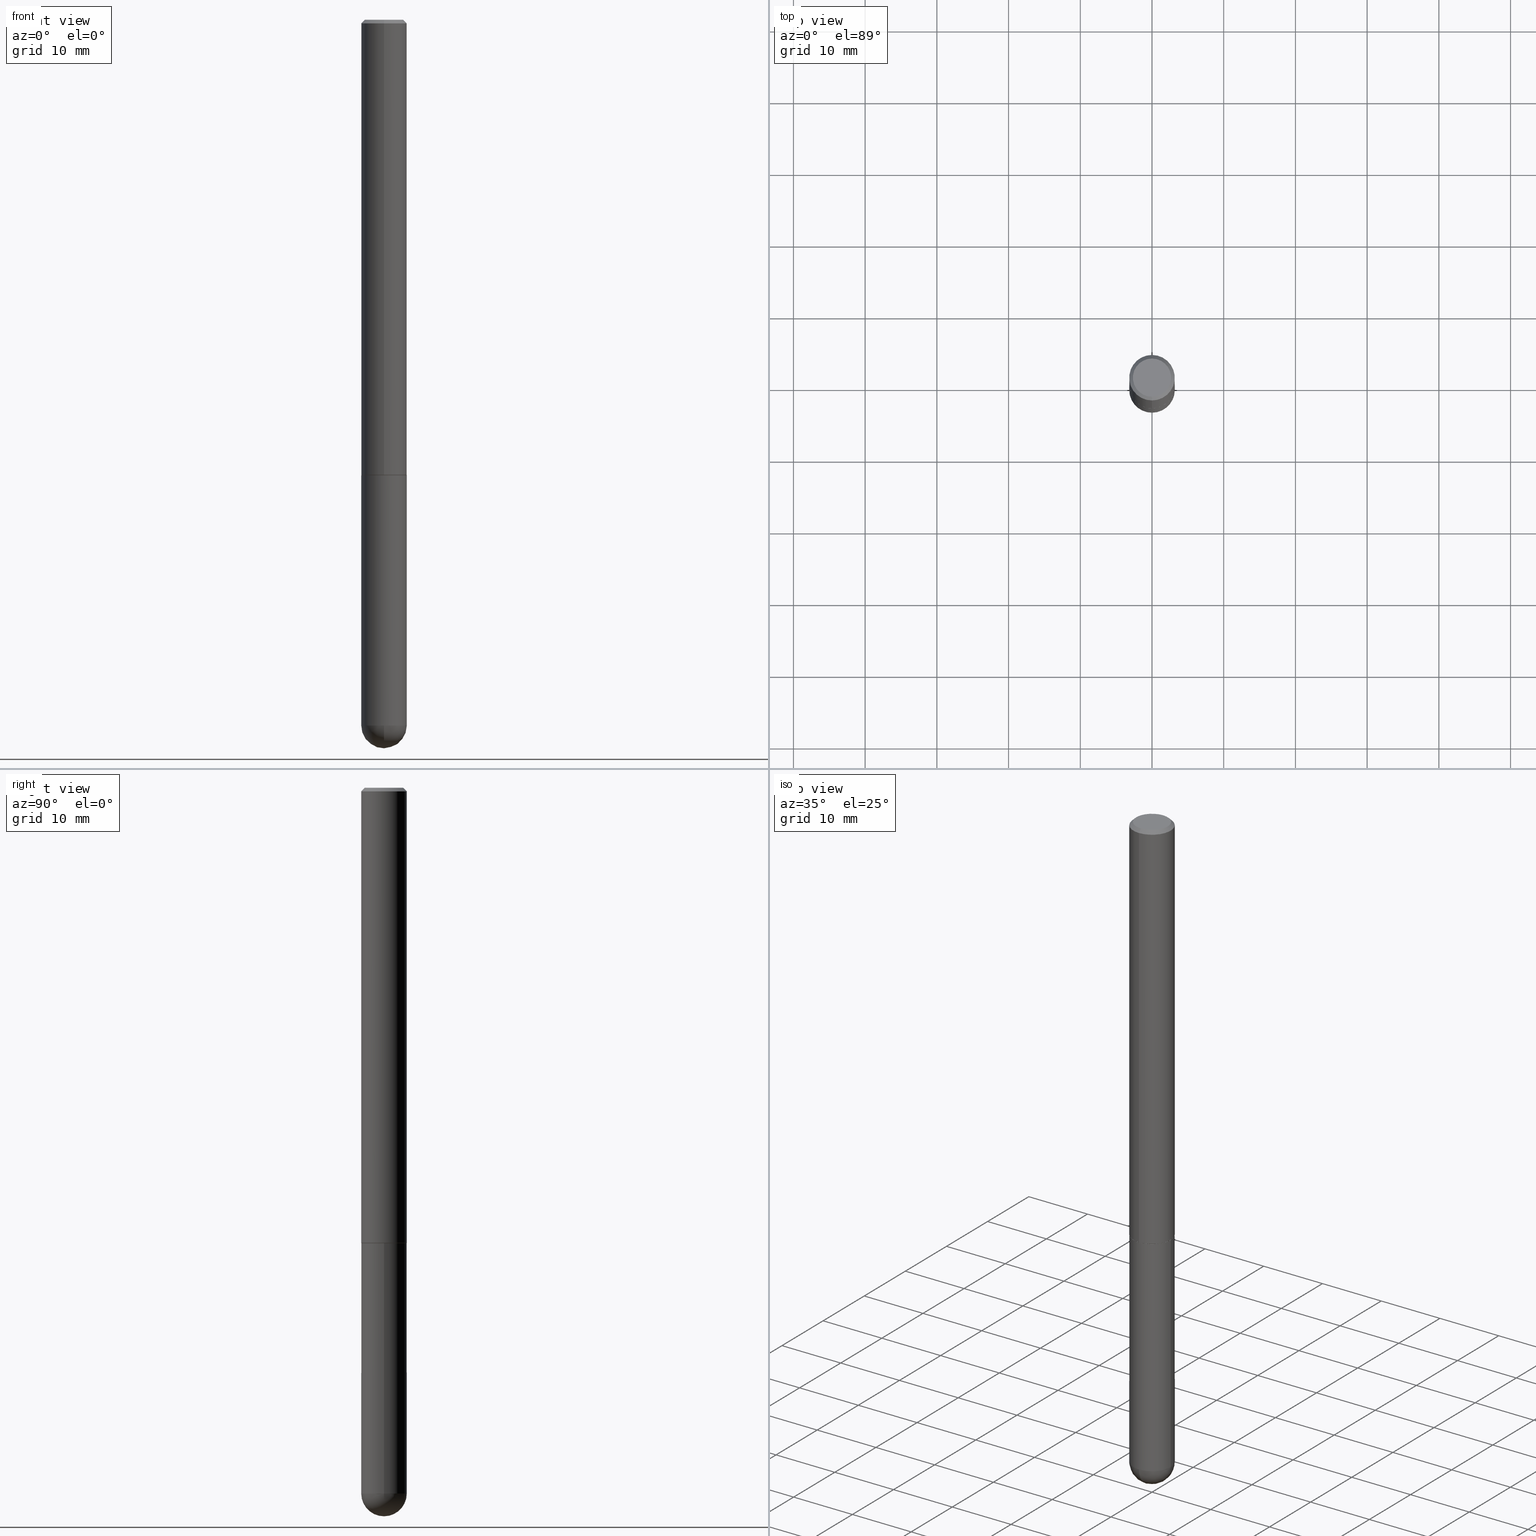
[diagram: canonical four-view strip — front | top / right | iso, engineering-drawing reading convention]
A machine part, canonical four-view strip (front | top / right | iso — engineering-drawing reading convention). The complete STEP part file that produces these views, byte-faithful:
ISO-10303-21;
HEADER;
FILE_DESCRIPTION (( 'STEP AP203' ),
    '1' );
FILE_NAME ('93341.STEP',
    '2024-04-10T12:37:51',
    ( '' ),
    ( '' ),
    'SwSTEP 2.0',
    'SolidWorks 2023',
    '' );
FILE_SCHEMA (( 'CONFIG_CONTROL_DESIGN' ));
ENDSEC;

DATA;
#1 = DIRECTION ( 'NONE',  ( 6.982962677686265922E-15, 1.000000000000000000, -3.491379954491197687E-15 ) ) ;
#2 = DIRECTION ( 'NONE',  ( -2.445468806185136597E-29, 3.491481338843145583E-15, 1.000000000000000000 ) ) ;
#3 = CC_DESIGN_SECURITY_CLASSIFICATION ( #181, ( #306 ) ) ;
#4 = DIRECTION ( 'NONE',  ( -2.445468806185136597E-29, 3.491481338843145583E-15, 1.000000000000000000 ) ) ;
#5 = DIRECTION ( 'NONE',  ( -2.445539602499712119E-29, 3.491379954491197687E-15, 1.000000000000000000 ) ) ;
#6 = EDGE_LOOP ( 'NONE', ( #72, #332 ) ) ;
#7 = CC_DESIGN_DATE_AND_TIME_ASSIGNMENT ( #157, #123, ( #277 ) ) ;
#8 = FACE_OUTER_BOUND ( 'NONE', #189, .T. ) ;
#9 = EDGE_CURVE ( 'NONE', #355, #156, #19, .T. ) ;
#10 = ORIENTED_EDGE ( 'NONE', *, *, #128, .T. ) ;
#11 = AXIS2_PLACEMENT_3D ( 'NONE', #258, #24, #17 ) ;
#12 = ORIENTED_EDGE ( 'NONE', *, *, #9, .T. ) ;
#13 = CARTESIAN_POINT ( 'NONE',  ( 6.113849006249280999E-29, -8.728449886227994612E-15, -2.500000000000000000 ) ) ;
#14 = ADVANCED_FACE ( 'NONE', ( #338 ), #56, .T. ) ;
#15 = ORIENTED_EDGE ( 'NONE', *, *, #202, .T. ) ;
#16 = MANIFOLD_SOLID_BREP ( 'Body-Move/Copy2[2]', #144 ) ;
#17 = DIRECTION ( 'NONE',  ( 1.000000000000000000, -6.982962677686270655E-15, 0.000000000000000000 ) ) ;
#18 = VERTEX_POINT ( 'NONE', #186 ) ;
#19 = CIRCLE ( 'NONE', #359, 0.1250000000000003053 ) ;
#20 = VECTOR ( 'NONE', #302, 39.37007874015748143 ) ;
#21 = APPLICATION_CONTEXT ( 'configuration controlled 3d designs of mechanical parts and assemblies' ) ;
#22 = DIRECTION ( 'NONE',  ( -2.445539602499712119E-29, 3.491379954491197687E-15, 1.000000000000000000 ) ) ;
#23 = DIRECTION ( 'NONE',  ( -6.982962677686265922E-15, -1.000000000000000000, 3.491379954491197687E-15 ) ) ;
#24 = DIRECTION ( 'NONE',  ( -2.445468806185136597E-29, 3.491481338843145583E-15, 1.000000000000000000 ) ) ;
#25 = FACE_OUTER_BOUND ( 'NONE', #175, .T. ) ;
#26 = COORDINATED_UNIVERSAL_TIME_OFFSET ( 5, 0, .BEHIND. ) ;
#27 = ORIENTED_EDGE ( 'NONE', *, *, #147, .T. ) ;
#28 = SHAPE_DEFINITION_REPRESENTATION ( #250, #159 ) ;
#29 = EDGE_LOOP ( 'NONE', ( #365, #121, #78, #404, #266 ) ) ;
#30 = APPROVAL_STATUS ( 'not_yet_approved' ) ;
#31 = EDGE_CURVE ( 'NONE', #388, #278, #281, .T. ) ;
#32 = MECHANICAL_CONTEXT ( 'NONE', #21, 'mechanical' ) ;
#33 = CALENDAR_DATE ( 2024, 10, 4 ) ;
#34 = CIRCLE ( 'NONE', #114, 0.1250000000000000000 ) ;
#35 = LOCAL_TIME ( 8, 37, 51.00000000000000000, #216 ) ;
#36 = DIRECTION ( 'NONE',  ( -6.982962677686265922E-15, -1.000000000000000000, 4.406206441393973340E-15 ) ) ;
#37 = CARTESIAN_POINT ( 'NONE',  ( 9.145071846053518065E-29, -1.400367255615723938E-14, -3.875000000000000000 ) ) ;
#38 = CARTESIAN_POINT ( 'NONE',  ( 9.145071846053518065E-29, -1.400367255615723938E-14, -3.875000000000000000 ) ) ;
#39 = AXIS2_PLACEMENT_3D ( 'NONE', #52, #176, #182 ) ;
#40 = AXIS2_PLACEMENT_3D ( 'NONE', #38, #331, #54 ) ;
#41 = APPROVAL_PERSON_ORGANIZATION ( #377, #276, #286 ) ;
#42 = DIRECTION ( 'NONE',  ( 1.000000000000000000, -6.982962677686262766E-15, 0.000000000000000000 ) ) ;
#43 = EDGE_LOOP ( 'NONE', ( #337, #60, #280, #342 ) ) ;
#44 = ADVANCED_FACE ( 'NONE', ( #407 ), #367, .F. ) ;
#45 = EDGE_CURVE ( 'NONE', #124, #183, #402, .T. ) ;
#46 = CARTESIAN_POINT ( 'NONE',  ( 6.113849006249280999E-29, -8.728449886227994612E-15, -2.500000000000000000 ) ) ;
#47 = ORIENTED_EDGE ( 'NONE', *, *, #259, .F. ) ;
#48 = ORIENTED_EDGE ( 'NONE', *, *, #396, .T. ) ;
#49 = CIRCLE ( 'NONE', #368, 0.1239999999999999991 ) ;
#50 = DIRECTION ( 'NONE',  ( -6.982962677686265922E-15, -1.000000000000000000, 3.491379954491197687E-15 ) ) ;
#51 = VERTEX_POINT ( 'NONE', #86 ) ;
#52 = CARTESIAN_POINT ( 'NONE',  ( -2.922608238305309478E-45, 4.172468034302132165E-31, 1.195077043658569665E-16 ) ) ;
#53 = ORIENTED_EDGE ( 'NONE', *, *, #321, .T. ) ;
#54 = DIRECTION ( 'NONE',  ( 6.982962677686265922E-15, 1.000000000000000000, -4.370956789862814839E-15 ) ) ;
#55 = CARTESIAN_POINT ( 'NONE',  ( 6.113849006249280999E-29, -8.728449886227994612E-15, -2.500000000000000000 ) ) ;
#56 = CONICAL_SURFACE ( 'NONE', #288, 0.1250000000000000278, 0.7853981633974473908 ) ;
#57 = LOCAL_TIME ( 8, 37, 51.00000000000000000, #26 ) ;
#58 = DIRECTION ( 'NONE',  ( -6.982962677686265922E-15, -1.000000000000000000, 3.483106191921934765E-15 ) ) ;
#59 = EDGE_CURVE ( 'NONE', #231, #400, #172, .T. ) ;
#60 = ORIENTED_EDGE ( 'NONE', *, *, #45, .T. ) ;
#61 = PERSON_AND_ORGANIZATION_ROLE ( 'creator' ) ;
#62 = DIRECTION ( 'NONE',  ( -6.982962677686265922E-15, -1.000000000000000000, 4.370956789862810105E-15 ) ) ;
#63 = COORDINATED_UNIVERSAL_TIME_OFFSET ( 5, 0, .BEHIND. ) ;
#64 = CIRCLE ( 'NONE', #263, 0.1250000000000000000 ) ;
#65 = ORIENTED_EDGE ( 'NONE', *, *, #31, .T. ) ;
#66 = LOCAL_TIME ( 8, 37, 51.00000000000000000, #63 ) ;
#67 = PERSON_AND_ORGANIZATION ( #73, #283 ) ;
#68 = CIRCLE ( 'NONE', #353, 0.1250000000000001943 ) ;
#69 = DIRECTION ( 'NONE',  ( -2.445539602499712119E-29, 3.491379954491197687E-15, 1.000000000000000000 ) ) ;
#70 = DIRECTION ( 'NONE',  ( -2.445539602499712119E-29, 3.491379954491197687E-15, 1.000000000000000000 ) ) ;
#71 = DIRECTION ( 'NONE',  ( -6.982962677686265922E-15, -1.000000000000000000, 3.491379954491197687E-15 ) ) ;
#72 = ORIENTED_EDGE ( 'NONE', *, *, #307, .T. ) ;
#73 = PERSON ( 'UNSPECIFIED', 'UNSPECIFIED', 'UNSPECIFIED', ('UNSPECIFIED'), ('UNSPECIFIED'), ('UNSPECIFIED') ) ;
#74 = AXIS2_PLACEMENT_3D ( 'NONE', #13, #22, #335 ) ;
#75 = CARTESIAN_POINT ( 'NONE',  ( 0.1250000000000000000, -8.728703347107833388E-16, 6.095220969744919741E-30 ) ) ;
#76 = CARTESIAN_POINT ( 'NONE',  ( 0.000000000000000000, 0.000000000000000000, 0.000000000000000000 ) ) ;
#77 = CARTESIAN_POINT ( 'NONE',  ( 8.728703347107839305E-16, 0.1249999999999999584, -0.02000000000000046185 ) ) ;
#78 = ORIENTED_EDGE ( 'NONE', *, *, #134, .T. ) ;
#79 = AXIS2_PLACEMENT_3D ( 'NONE', #76, #297, #292 ) ;
#80 = DIRECTION ( 'NONE',  ( -2.445539602499712119E-29, 3.491379954491197687E-15, 1.000000000000000000 ) ) ;
#81 = VERTEX_POINT ( 'NONE', #117 ) ;
#82 = CARTESIAN_POINT ( 'NONE',  ( -8.658873720330357934E-16, -0.1240000000000087144, -2.499999999999999556 ) ) ;
#83 = ORIENTED_EDGE ( 'NONE', *, *, #308, .F. ) ;
#84 =( NAMED_UNIT ( * ) SI_UNIT ( $, .STERADIAN. ) SOLID_ANGLE_UNIT ( ) );
#85 = CC_DESIGN_PERSON_AND_ORGANIZATION_ASSIGNMENT ( #152, #409, ( #277 ) ) ;
#86 = CARTESIAN_POINT ( 'NONE',  ( 9.456100236134031739E-29, -1.443245368101796326E-14, -4.000000000000000888 ) ) ;
#87 = ADVANCED_FACE ( 'NONE', ( #211 ), #271, .T. ) ;
#88 = CIRCLE ( 'NONE', #410, 0.1250000000000000000 ) ;
#89 =( GEOMETRIC_REPRESENTATION_CONTEXT ( 3 ) GLOBAL_UNCERTAINTY_ASSIGNED_CONTEXT ( ( #375 ) ) GLOBAL_UNIT_ASSIGNED_CONTEXT ( ( #267, #352, #84 ) ) REPRESENTATION_CONTEXT ( 'NONE', 'WORKASPACE' ) );
#90 = CARTESIAN_POINT ( 'NONE',  ( 0.000000000000000000, 0.000000000000000000, 0.000000000000000000 ) ) ;
#91 = DIRECTION ( 'NONE',  ( 2.445539602499712119E-29, -3.491379954491197687E-15, -1.000000000000000000 ) ) ;
#92 = VERTEX_POINT ( 'NONE', #275 ) ;
#93 = CC_DESIGN_PERSON_AND_ORGANIZATION_ASSIGNMENT ( #341, #251, ( #306 ) ) ;
#94 = APPROVAL_DATE_TIME ( #244, #246 ) ;
#95 = CARTESIAN_POINT ( 'NONE',  ( 9.476191623967404313E-29, -1.352949018801718908E-14, -3.875000000000000000 ) ) ;
#96 = VECTOR ( 'NONE', #300, 39.37007874015748143 ) ;
#97 = PERSON_AND_ORGANIZATION ( #73, #283 ) ;
#98 = DATE_AND_TIME ( #290, #57 ) ;
#99 = CARTESIAN_POINT ( 'NONE',  ( 8.881784197001575756E-16, 0.1249999999999915623, -2.499000000000000998 ) ) ;
#100 = CONICAL_SURFACE ( 'NONE', #322, 0.1239999999999999991, 0.7853981633977044075 ) ;
#101 = CARTESIAN_POINT ( 'NONE',  ( 0.000000000000000000, 0.000000000000000000, 0.000000000000000000 ) ) ;
#102 = CARTESIAN_POINT ( 'NONE',  ( -0.1250000000000000000, 8.881784197001252323E-16, -6.148668862818632227E-30 ) ) ;
#103 = ADVANCED_FACE ( 'NONE', ( #25 ), #360, .T. ) ;
#104 = CARTESIAN_POINT ( 'NONE',  ( -7.889572697437256209E-16, -0.1049999999999999267, 4.861025995874324279E-16 ) ) ;
#105 = CARTESIAN_POINT ( 'NONE',  ( -8.575622497214411495E-16, -0.1250000000000001110, -0.01999999999999959102 ) ) ;
#106 = CLOSED_SHELL ( 'NONE', ( #219, #261, #218, #44, #160 ) ) ;
#107 = EDGE_LOOP ( 'NONE', ( #198, #209 ) ) ;
#108 = DIRECTION ( 'NONE',  ( -2.445468806185136597E-29, 3.491481338843145583E-15, 1.000000000000000000 ) ) ;
#109 = ORIENTED_EDGE ( 'NONE', *, *, #307, .F. ) ;
#110 = ORIENTED_EDGE ( 'NONE', *, *, #31, .F. ) ;
#111 = DIRECTION ( 'NONE',  ( -6.982962677686265922E-15, -1.000000000000000000, 3.483106191921934765E-15 ) ) ;
#112 = CARTESIAN_POINT ( 'NONE',  ( -8.575622497214411495E-16, -0.1250000000000001110, -0.01999999999999959102 ) ) ;
#113 = ORIENTED_EDGE ( 'NONE', *, *, #145, .T. ) ;
#114 = AXIS2_PLACEMENT_3D ( 'NONE', #387, #291, #194 ) ;
#115 = CC_DESIGN_APPROVAL ( #276, ( #306 ) ) ;
#116 = CARTESIAN_POINT ( 'NONE',  ( -8.728703347107844235E-16, -0.1250000000000001665, 4.364224943114003025E-16 ) ) ;
#117 = CARTESIAN_POINT ( 'NONE',  ( -0.1250000000000000000, -1.024091834786240415E-14, -3.875000000000000000 ) ) ;
#118 = ADVANCED_FACE ( 'NONE', ( #252 ), #164, .T. ) ;
#119 = EDGE_LOOP ( 'NONE', ( #83, #326, #48, #357 ) ) ;
#120 = APPLICATION_PROTOCOL_DEFINITION ( 'international standard', 'config_control_design', 1994, #21 ) ;
#121 = ORIENTED_EDGE ( 'NONE', *, *, #259, .T. ) ;
#122 = VECTOR ( 'NONE', #386, 39.37007874015748143 ) ;
#123 = DATE_TIME_ROLE ( 'creation_date' ) ;
#124 = VERTEX_POINT ( 'NONE', #260 ) ;
#125 = DIRECTION ( 'NONE',  ( -2.445539602499712119E-29, 3.491379954491197687E-15, 1.000000000000000000 ) ) ;
#126 = COORDINATED_UNIVERSAL_TIME_OFFSET ( 5, 0, .BEHIND. ) ;
#127 = CALENDAR_DATE ( 2024, 10, 4 ) ;
#128 = EDGE_CURVE ( 'NONE', #81, #92, #384, .T. ) ;
#129 = PERSON_AND_ORGANIZATION ( #73, #283 ) ;
#130 = CC_DESIGN_PERSON_AND_ORGANIZATION_ASSIGNMENT ( #67, #61, ( #306 ) ) ;
#131 = DIRECTION ( 'NONE',  ( 1.000000000000000000, -6.982962677686266711E-15, 4.876176775795935793E-29 ) ) ;
#132 = LINE ( 'NONE', #105, #192 ) ;
#133 = CC_DESIGN_APPROVAL ( #240, ( #181 ) ) ;
#134 = EDGE_CURVE ( 'NONE', #171, #231, #34, .T. ) ;
#135 = CARTESIAN_POINT ( 'NONE',  ( 9.476191623967404313E-29, -1.352949018801718908E-14, -3.875000000000000000 ) ) ;
#136 = LINE ( 'NONE', #77, #236 ) ;
#137 = DIRECTION ( 'NONE',  ( 2.445539602499711559E-29, -3.491379954491197687E-15, -1.000000000000000000 ) ) ;
#138 = AXIS2_PLACEMENT_3D ( 'NONE', #305, #241, #316 ) ;
#139 = ORIENTED_EDGE ( 'NONE', *, *, #308, .T. ) ;
#140 = AXIS2_PLACEMENT_3D ( 'NONE', #95, #217, #143 ) ;
#141 = ORIENTED_EDGE ( 'NONE', *, *, #232, .T. ) ;
#142 = LINE ( 'NONE', #75, #20 ) ;
#143 = DIRECTION ( 'NONE',  ( 1.000000000000000000, -6.982962677686262766E-15, 0.000000000000000000 ) ) ;
#144 = CLOSED_SHELL ( 'NONE', ( #378, #87, #14, #103, #118, #235, #362, #170 ) ) ;
#145 = EDGE_CURVE ( 'NONE', #393, #388, #132, .T. ) ;
#146 = CIRCLE ( 'NONE', #327, 0.1250000000000000000 ) ;
#147 = EDGE_CURVE ( 'NONE', #183, #124, #49, .T. ) ;
#148 = CARTESIAN_POINT ( 'NONE',  ( 8.728703347108770161E-16, 0.1249999999999863443, -3.875000000000000444 ) ) ;
#149 = CARTESIAN_POINT ( 'NONE',  ( 6.111403466646780702E-29, -8.724958506273503079E-15, -2.499000000000000110 ) ) ;
#150 = LINE ( 'NONE', #116, #122 ) ;
#151 = ORIENTED_EDGE ( 'NONE', *, *, #345, .T. ) ;
#152 = PERSON_AND_ORGANIZATION ( #73, #283 ) ;
#153 = ORIENTED_EDGE ( 'NONE', *, *, #296, .T. ) ;
#154 = VECTOR ( 'NONE', #80, 39.37007874015748143 ) ;
#155 = DIRECTION ( 'NONE',  ( 1.000000000000000000, 0.000000000000000000, 0.000000000000000000 ) ) ;
#156 = VERTEX_POINT ( 'NONE', #99 ) ;
#157 = DATE_AND_TIME ( #373, #66 ) ;
#158 = APPROVAL_ROLE ( '' ) ;
#159 = ADVANCED_BREP_SHAPE_REPRESENTATION ( '93341', ( #163, #16, #230 ), #89 ) ;
#160 = ADVANCED_FACE ( 'NONE', ( #350 ), #233, .T. ) ;
#161 = CARTESIAN_POINT ( 'NONE',  ( -8.881784197000325412E-16, -0.1250000000000138500, -3.874999999999999556 ) ) ;
#162 = CYLINDRICAL_SURFACE ( 'NONE', #314, 0.1250000000000000000 ) ;
#163 = MANIFOLD_SOLID_BREP ( 'Body-Move/Copy2[1]', #106 ) ;
#164 = CYLINDRICAL_SURFACE ( 'NONE', #389, 0.1250000000000001665 ) ;
#165 = CIRCLE ( 'NONE', #205, 0.1250000000000001943 ) ;
#166 = DIRECTION ( 'NONE',  ( 1.000000000000000000, -6.982962677686270655E-15, 0.000000000000000000 ) ) ;
#167 = DIRECTION ( 'NONE',  ( -2.445539602499712119E-29, 3.491379954491197687E-15, 1.000000000000000000 ) ) ;
#168 = ORIENTED_EDGE ( 'NONE', *, *, #396, .F. ) ;
#169 = CARTESIAN_POINT ( 'NONE',  ( 6.113849006249280999E-29, -8.728449886227994612E-15, -2.500000000000000000 ) ) ;
#170 = ADVANCED_FACE ( 'NONE', ( #380 ), #319, .F. ) ;
#171 = VERTEX_POINT ( 'NONE', #161 ) ;
#172 = CIRCLE ( 'NONE', #140, 0.1250000000000000000 ) ;
#173 = CARTESIAN_POINT ( 'NONE',  ( 4.891079204999430334E-31, -6.982759908982402769E-17, -0.02000000000000002470 ) ) ;
#174 = LINE ( 'NONE', #82, #96 ) ;
#175 = EDGE_LOOP ( 'NONE', ( #204, #311, #141, #392 ) ) ;
#176 = DIRECTION ( 'NONE',  ( -2.445539602499712119E-29, 3.491379954491197687E-15, 1.000000000000000000 ) ) ;
#177 = ORIENTED_EDGE ( 'NONE', *, *, #296, .F. ) ;
#178 = DIRECTION ( 'NONE',  ( -6.982962677686265922E-15, -1.000000000000000000, 4.370956789862810105E-15 ) ) ;
#179 = DIRECTION ( 'NONE',  ( -2.445539602499712119E-29, 3.491379954491197687E-15, 1.000000000000000000 ) ) ;
#180 = AXIS2_PLACEMENT_3D ( 'NONE', #226, #137, #1 ) ;
#181 = SECURITY_CLASSIFICATION ( '', '', #312 ) ;
#182 = DIRECTION ( 'NONE',  ( -6.982962677686265922E-15, -1.000000000000000000, 3.491379954491197687E-15 ) ) ;
#183 = VERTEX_POINT ( 'NONE', #320 ) ;
#184 = CARTESIAN_POINT ( 'NONE',  ( 9.145071846053518065E-29, -1.400367255615723938E-14, -3.875000000000000000 ) ) ;
#185 = DIRECTION ( 'NONE',  ( 6.982962677686265922E-15, 1.000000000000000000, -3.483106191921934765E-15 ) ) ;
#186 = CARTESIAN_POINT ( 'NONE',  ( 8.030407079339207309E-16, 0.1049999999999999267, -2.470871908557185934E-16 ) ) ;
#187 = AXIS2_PLACEMENT_3D ( 'NONE', #262, #69, #71 ) ;
#188 = DATE_AND_TIME ( #127, #264 ) ;
#189 = EDGE_LOOP ( 'NONE', ( #234, #53, #47, #177 ) ) ;
#190 = PERSON_AND_ORGANIZATION_ROLE ( 'design_owner' ) ;
#191 = DESIGN_CONTEXT ( 'detailed design', #340, 'design' ) ;
#192 = VECTOR ( 'NONE', #347, 39.37007874015748143 ) ;
#193 = APPROVAL_PERSON_ORGANIZATION ( #379, #240, #158 ) ;
#194 = DIRECTION ( 'NONE',  ( 1.000000000000000000, -6.982962677686262766E-15, 0.000000000000000000 ) ) ;
#195 = DIRECTION ( 'NONE',  ( 1.000000000000000000, -6.982962677686262766E-15, 0.000000000000000000 ) ) ;
#196 = FACE_OUTER_BOUND ( 'NONE', #385, .T. ) ;
#197 = VECTOR ( 'NONE', #228, 39.37007874015748143 ) ;
#198 = ORIENTED_EDGE ( 'NONE', *, *, #147, .F. ) ;
#199 = CARTESIAN_POINT ( 'NONE',  ( 6.111403466646780702E-29, -8.724958506273503079E-15, -2.499000000000000110 ) ) ;
#200 = DIRECTION ( 'NONE',  ( 4.937700262164543309E-15, 0.7071067811865444641, -0.7071067811865505703 ) ) ;
#201 = EDGE_CURVE ( 'NONE', #18, #393, #242, .T. ) ;
#202 = EDGE_CURVE ( 'NONE', #124, #156, #323, .T. ) ;
#203 = CARTESIAN_POINT ( 'NONE',  ( 8.728703347107839305E-16, 0.1249999999999999584, -0.02000000000000046185 ) ) ;
#204 = ORIENTED_EDGE ( 'NONE', *, *, #145, .F. ) ;
#205 = AXIS2_PLACEMENT_3D ( 'NONE', #330, #309, #207 ) ;
#206 = PRODUCT_RELATED_PRODUCT_CATEGORY ( 'detail', '', ( #225 ) ) ;
#207 = DIRECTION ( 'NONE',  ( -7.105427357601000281E-15, -1.000000000000000000, 0.000000000000000000 ) ) ;
#208 = ORIENTED_EDGE ( 'NONE', *, *, #363, .F. ) ;
#209 = ORIENTED_EDGE ( 'NONE', *, *, #45, .F. ) ;
#210 = FACE_OUTER_BOUND ( 'NONE', #361, .T. ) ;
#211 = FACE_OUTER_BOUND ( 'NONE', #399, .T. ) ;
#212 = CARTESIAN_POINT ( 'NONE',  ( 9.476191623967404313E-29, -1.352949018801718908E-14, -3.875000000000000000 ) ) ;
#213 = CARTESIAN_POINT ( 'NONE',  ( -8.728703347107242729E-16, -0.1250000000000090206, -2.498999999999999666 ) ) ;
#214 = DIRECTION ( 'NONE',  ( 6.982962677686265922E-15, 1.000000000000000000, -3.483106191921934765E-15 ) ) ;
#215 = DIRECTION ( 'NONE',  ( 2.445539602499712119E-29, -3.491379954491197687E-15, -1.000000000000000000 ) ) ;
#216 = COORDINATED_UNIVERSAL_TIME_OFFSET ( 5, 0, .BEHIND. ) ;
#217 = DIRECTION ( 'NONE',  ( -2.445468806185136597E-29, 3.491481338843145583E-15, 1.000000000000000000 ) ) ;
#218 = ADVANCED_FACE ( 'NONE', ( #356 ), #412, .T. ) ;
#219 = ADVANCED_FACE ( 'NONE', ( #196 ), #162, .T. ) ;
#220 = APPROVAL_STATUS ( 'not_yet_approved' ) ;
#221 = APPROVAL_DATE_TIME ( #249, #240 ) ;
#222 = DIRECTION ( 'NONE',  ( -2.445468806185136877E-29, 3.491481338843145188E-15, 1.000000000000000000 ) ) ;
#223 = AXIS2_PLACEMENT_3D ( 'NONE', #369, #91, #214 ) ;
#224 = CARTESIAN_POINT ( 'NONE',  ( 0.1250000000000000000, -1.200196710227331272E-14, -3.875000000000000000 ) ) ;
#225 = PRODUCT ( '93341', '93341', '', ( #32 ) ) ;
#226 = CARTESIAN_POINT ( 'NONE',  ( 7.332110811570574327E-16, 0.1049999999999999267, -3.068410430386469287E-16 ) ) ;
#227 = LENGTH_MEASURE_WITH_UNIT ( LENGTH_MEASURE( 0.02539999999999999897 ), #274 );
#228 = DIRECTION ( 'NONE',  ( 5.024295867789349022E-15, 0.7071067811867310926, 0.7071067811863640529 ) ) ;
#229 = CC_DESIGN_PERSON_AND_ORGANIZATION_ASSIGNMENT ( #97, #190, ( #225 ) ) ;
#230 = AXIS2_PLACEMENT_3D ( 'NONE', #90, #411, #155 ) ;
#231 = VERTEX_POINT ( 'NONE', #224 ) ;
#232 = EDGE_CURVE ( 'NONE', #18, #278, #136, .T. ) ;
#233 = CYLINDRICAL_SURFACE ( 'NONE', #79, 0.1250000000000000000 ) ;
#234 = ORIENTED_EDGE ( 'NONE', *, *, #391, .F. ) ;
#235 = ADVANCED_FACE ( 'NONE', ( #324 ), #100, .T. ) ;
#236 = VECTOR ( 'NONE', #200, 39.37007874015748143 ) ;
#237 = DIRECTION ( 'NONE',  ( -2.445539602499712119E-29, 3.491379954491197687E-15, 1.000000000000000000 ) ) ;
#238 = DIRECTION ( 'NONE',  ( 6.982962677686265133E-15, 1.000000000000000000, 0.000000000000000000 ) ) ;
#239 = CARTESIAN_POINT ( 'NONE',  ( 4.891079204999430334E-31, -6.982759908982402769E-17, -0.02000000000000002470 ) ) ;
#240 = APPROVAL ( #220, 'UNSPECIFIED' ) ;
#241 = DIRECTION ( 'NONE',  ( 2.438088387897960049E-29, -3.491481338843145188E-15, -1.000000000000000000 ) ) ;
#242 = CIRCLE ( 'NONE', #187, 0.1049999999999999267 ) ;
#243 = CARTESIAN_POINT ( 'NONE',  ( 4.891079204999430334E-31, -6.982759908982402769E-17, -0.02000000000000002470 ) ) ;
#244 = DATE_AND_TIME ( #315, #35 ) ;
#245 = DIRECTION ( 'NONE',  ( -2.445539602499712119E-29, 3.491379954491197687E-15, 1.000000000000000000 ) ) ;
#246 = APPROVAL ( #30, 'UNSPECIFIED' ) ;
#247 = APPROVAL_DATE_TIME ( #98, #276 ) ;
#248 = CONICAL_SURFACE ( 'NONE', #74, 0.1239999999999999991, 0.7853981633977044075 ) ;
#249 = DATE_AND_TIME ( #33, #397 ) ;
#250 = PRODUCT_DEFINITION_SHAPE ( 'NONE', 'NONE',  #277 ) ;
#251 = PERSON_AND_ORGANIZATION_ROLE ( 'design_supplier' ) ;
#252 = FACE_OUTER_BOUND ( 'NONE', #119, .T. ) ;
#253 = LINE ( 'NONE', #295, #154 ) ;
#254 = DIRECTION ( 'NONE',  ( -1.000000000000000000, 6.982962677686265922E-15, -4.883557194083112901E-29 ) ) ;
#255 = AXIS2_PLACEMENT_3D ( 'NONE', #55, #125, #374 ) ;
#256 = SPHERICAL_SURFACE ( 'NONE', #40, 0.1250000000000001943 ) ;
#257 = ORIENTED_EDGE ( 'NONE', *, *, #201, .T. ) ;
#258 = CARTESIAN_POINT ( 'NONE',  ( 6.113672015462842613E-29, -8.728703347107864943E-15, -2.500000000000000000 ) ) ;
#259 = EDGE_CURVE ( 'NONE', #81, #171, #64, .T. ) ;
#260 = CARTESIAN_POINT ( 'NONE',  ( 8.846257060213868511E-16, 0.1239999999999912700, -2.500000000000000444 ) ) ;
#261 = ADVANCED_FACE ( 'NONE', ( #8 ), #256, .T. ) ;
#262 = CARTESIAN_POINT ( 'NONE',  ( -2.922608238305309478E-45, 4.172468034302132165E-31, 1.195077043658569665E-16 ) ) ;
#263 = AXIS2_PLACEMENT_3D ( 'NONE', #135, #108, #42 ) ;
#264 = LOCAL_TIME ( 8, 37, 51.00000000000000000, #370 ) ;
#265 = ORIENTED_EDGE ( 'NONE', *, *, #345, .F. ) ;
#266 = ORIENTED_EDGE ( 'NONE', *, *, #333, .F. ) ;
#267 =( CONVERSION_BASED_UNIT ( 'INCH', #227 ) LENGTH_UNIT ( ) NAMED_UNIT ( #346 ) );
#268 = ORIENTED_EDGE ( 'NONE', *, *, #232, .F. ) ;
#269 = PLANE ( 'NONE',  #270 ) ;
#270 = AXIS2_PLACEMENT_3D ( 'NONE', #328, #366, #50 ) ;
#271 = CYLINDRICAL_SURFACE ( 'NONE', #282, 0.1250000000000001665 ) ;
#272 = CIRCLE ( 'NONE', #39, 0.1049999999999999267 ) ;
#273 = DIRECTION ( 'NONE',  ( -2.445539602499712119E-29, 3.491379954491197687E-15, 1.000000000000000000 ) ) ;
#274 =( LENGTH_UNIT ( ) NAMED_UNIT ( * ) SI_UNIT ( $, .METRE. ) );
#275 = CARTESIAN_POINT ( 'NONE',  ( -0.1250000000000000000, -1.024091834786240099E-14, -2.500000000000000000 ) ) ;
#276 = APPROVAL ( #406, 'UNSPECIFIED' ) ;
#277 = PRODUCT_DEFINITION ( 'UNKNOWN', '', #306, #191 ) ;
#278 = VERTEX_POINT ( 'NONE', #203 ) ;
#279 = PERSON_AND_ORGANIZATION_ROLE ( 'classification_officer' ) ;
#280 = ORIENTED_EDGE ( 'NONE', *, *, #363, .T. ) ;
#281 = CIRCLE ( 'NONE', #334, 0.1250000000000000278 ) ;
#282 = AXIS2_PLACEMENT_3D ( 'NONE', #401, #237, #23 ) ;
#283 = ORGANIZATION ( 'UNSPECIFIED', 'UNSPECIFIED', '' ) ;
#284 = ORIENTED_EDGE ( 'NONE', *, *, #376, .F. ) ;
#285 = CC_DESIGN_DATE_AND_TIME_ASSIGNMENT ( #188, #403, ( #181 ) ) ;
#286 = APPROVAL_ROLE ( '' ) ;
#287 = APPLICATION_PROTOCOL_DEFINITION ( 'international standard', 'config_control_design', 1994, #340 ) ;
#288 = AXIS2_PLACEMENT_3D ( 'NONE', #243, #215, #185 ) ;
#289 = DIRECTION ( 'NONE',  ( -2.445468806185136597E-29, 3.491481338843145583E-15, 1.000000000000000000 ) ) ;
#290 = CALENDAR_DATE ( 2024, 10, 4 ) ;
#291 = DIRECTION ( 'NONE',  ( -2.445468806185136597E-29, 3.491481338843145583E-15, 1.000000000000000000 ) ) ;
#292 = DIRECTION ( 'NONE',  ( 1.000000000000000000, -6.982962677686266711E-15, 4.876176775795935793E-29 ) ) ;
#293 = CIRCLE ( 'NONE', #336, 0.1250000000000000278 ) ;
#294 = EDGE_CURVE ( 'NONE', #278, #388, #293, .T. ) ;
#295 = CARTESIAN_POINT ( 'NONE',  ( 8.881784197001262184E-16, 0.1250000000000001665, -4.364224943114003025E-16 ) ) ;
#296 = EDGE_CURVE ( 'NONE', #400, #81, #88, .T. ) ;
#297 = DIRECTION ( 'NONE',  ( -2.445468806185136597E-29, 3.491481338843145583E-15, 1.000000000000000000 ) ) ;
#298 = DIRECTION ( 'NONE',  ( -6.982962677686265922E-15, -1.000000000000000000, 4.406206441393973340E-15 ) ) ;
#299 = CIRCLE ( 'NONE', #11, 0.1250000000000000000 ) ;
#300 = DIRECTION ( 'NONE',  ( -4.937700262165812586E-15, -0.7071067811867262076, 0.7071067811863689379 ) ) ;
#301 = ORIENTED_EDGE ( 'NONE', *, *, #391, .T. ) ;
#302 = DIRECTION ( 'NONE',  ( -2.445468806185136877E-29, 3.491481338843145188E-15, 1.000000000000000000 ) ) ;
#303 = CARTESIAN_POINT ( 'NONE',  ( 0.1250000000000000000, -9.601573681818648281E-15, -2.500000000000000000 ) ) ;
#304 = VECTOR ( 'NONE', #222, 39.37007874015748143 ) ;
#305 = CARTESIAN_POINT ( 'NONE',  ( 8.728703347108443769E-16, 0.1249999999999912709, -2.500000000000000444 ) ) ;
#306 = PRODUCT_DEFINITION_FORMATION_WITH_SPECIFIED_SOURCE ( 'ANY', '', #225, .NOT_KNOWN. ) ;
#307 = EDGE_CURVE ( 'NONE', #313, #92, #146, .T. ) ;
#308 = EDGE_CURVE ( 'NONE', #156, #278, #253, .T. ) ;
#309 = DIRECTION ( 'NONE',  ( -1.000000000000000000, 7.105427357601001070E-15, -4.926315508542082329E-29 ) ) ;
#310 = ORIENTED_EDGE ( 'NONE', *, *, #321, .F. ) ;
#311 = ORIENTED_EDGE ( 'NONE', *, *, #201, .F. ) ;
#312 = SECURITY_CLASSIFICATION_LEVEL ( 'unclassified' ) ;
#313 = VERTEX_POINT ( 'NONE', #303 ) ;
#314 = AXIS2_PLACEMENT_3D ( 'NONE', #101, #4, #131 ) ;
#315 = CALENDAR_DATE ( 2024, 10, 4 ) ;
#316 = DIRECTION ( 'NONE',  ( -1.000000000000000000, 6.982962677686265922E-15, -4.876176775795935793E-29 ) ) ;
#317 = EDGE_CURVE ( 'NONE', #156, #355, #318, .T. ) ;
#318 = CIRCLE ( 'NONE', #343, 0.1250000000000003053 ) ;
#319 = PLANE ( 'NONE',  #180 ) ;
#320 = CARTESIAN_POINT ( 'NONE',  ( -8.658873720330357934E-16, -0.1240000000000087144, -2.499999999999999556 ) ) ;
#321 = EDGE_CURVE ( 'NONE', #51, #171, #165, .T. ) ;
#322 = AXIS2_PLACEMENT_3D ( 'NONE', #169, #70, #298 ) ;
#323 = LINE ( 'NONE', #349, #197 ) ;
#324 = FACE_OUTER_BOUND ( 'NONE', #43, .T. ) ;
#325 = EDGE_LOOP ( 'NONE', ( #257, #151 ) ) ;
#326 = ORIENTED_EDGE ( 'NONE', *, *, #317, .T. ) ;
#327 = AXIS2_PLACEMENT_3D ( 'NONE', #372, #289, #166 ) ;
#328 = CARTESIAN_POINT ( 'NONE',  ( 6.113849006249280999E-29, -8.728449886227994612E-15, -2.500000000000000000 ) ) ;
#329 = ORIENTED_EDGE ( 'NONE', *, *, #9, .F. ) ;
#330 = CARTESIAN_POINT ( 'NONE',  ( 9.145071846053518065E-29, -1.400367255615723938E-14, -3.875000000000000000 ) ) ;
#331 = DIRECTION ( 'NONE',  ( -1.000000000000000000, 6.982962677686265922E-15, -4.883557194083112901E-29 ) ) ;
#332 = ORIENTED_EDGE ( 'NONE', *, *, #333, .T. ) ;
#333 = EDGE_CURVE ( 'NONE', #92, #313, #299, .T. ) ;
#334 = AXIS2_PLACEMENT_3D ( 'NONE', #239, #245, #58 ) ;
#335 = DIRECTION ( 'NONE',  ( -6.982962677686265922E-15, -1.000000000000000000, 4.406206441393973340E-15 ) ) ;
#336 = AXIS2_PLACEMENT_3D ( 'NONE', #173, #273, #111 ) ;
#337 = ORIENTED_EDGE ( 'NONE', *, *, #202, .F. ) ;
#338 = FACE_OUTER_BOUND ( 'NONE', #351, .T. ) ;
#339 = EDGE_LOOP ( 'NONE', ( #310, #301, #395, #371 ) ) ;
#340 = APPLICATION_CONTEXT ( 'configuration controlled 3d designs of mechanical parts and assemblies' ) ;
#341 = PERSON_AND_ORGANIZATION ( #73, #283 ) ;
#342 = ORIENTED_EDGE ( 'NONE', *, *, #317, .F. ) ;
#343 = AXIS2_PLACEMENT_3D ( 'NONE', #199, #398, #178 ) ;
#344 = APPROVAL_ROLE ( '' ) ;
#345 = EDGE_CURVE ( 'NONE', #393, #18, #272, .T. ) ;
#346 = DIMENSIONAL_EXPONENTS ( 1.000000000000000000, 0.000000000000000000, 0.000000000000000000, 0.000000000000000000, 0.000000000000000000, 0.000000000000000000, 0.000000000000000000 ) ;
#347 = DIRECTION ( 'NONE',  ( -4.851104656540959542E-15, -0.7071067811865493491, -0.7071067811865456854 ) ) ;
#348 = CC_DESIGN_PERSON_AND_ORGANIZATION_ASSIGNMENT ( #408, #279, ( #181 ) ) ;
#349 = CARTESIAN_POINT ( 'NONE',  ( 8.810729923425852623E-16, 0.1239999999999912700, -2.500000000000000444 ) ) ;
#350 = FACE_OUTER_BOUND ( 'NONE', #29, .T. ) ;
#351 = EDGE_LOOP ( 'NONE', ( #265, #113, #65, #268 ) ) ;
#352 =( NAMED_UNIT ( * ) PLANE_ANGLE_UNIT ( ) SI_UNIT ( $, .RADIAN. ) );
#353 = AXIS2_PLACEMENT_3D ( 'NONE', #184, #394, #238 ) ;
#354 = DIRECTION ( 'NONE',  ( -6.982962677686265922E-15, -1.000000000000000000, 3.491379954491197687E-15 ) ) ;
#355 = VERTEX_POINT ( 'NONE', #213 ) ;
#356 = FACE_OUTER_BOUND ( 'NONE', #339, .T. ) ;
#357 = ORIENTED_EDGE ( 'NONE', *, *, #294, .F. ) ;
#358 = ORIENTED_EDGE ( 'NONE', *, *, #59, .T. ) ;
#359 = AXIS2_PLACEMENT_3D ( 'NONE', #149, #179, #62 ) ;
#360 = CONICAL_SURFACE ( 'NONE', #223, 0.1250000000000000278, 0.7853981633974473908 ) ;
#361 = EDGE_LOOP ( 'NONE', ( #27, #15, #329, #208 ) ) ;
#362 = ADVANCED_FACE ( 'NONE', ( #364 ), #269, .F. ) ;
#363 = EDGE_CURVE ( 'NONE', #183, #355, #174, .T. ) ;
#364 = FACE_OUTER_BOUND ( 'NONE', #107, .T. ) ;
#365 = ORIENTED_EDGE ( 'NONE', *, *, #128, .F. ) ;
#366 = DIRECTION ( 'NONE',  ( -2.445539602499711559E-29, 3.491379954491197687E-15, 1.000000000000000000 ) ) ;
#367 = PLANE ( 'NONE',  #138 ) ;
#368 = AXIS2_PLACEMENT_3D ( 'NONE', #46, #167, #36 ) ;
#369 = CARTESIAN_POINT ( 'NONE',  ( 4.891079204999430334E-31, -6.982759908982402769E-17, -0.02000000000000002470 ) ) ;
#370 = COORDINATED_UNIVERSAL_TIME_OFFSET ( 5, 0, .BEHIND. ) ;
#371 = ORIENTED_EDGE ( 'NONE', *, *, #134, .F. ) ;
#372 = CARTESIAN_POINT ( 'NONE',  ( 6.113672015462842613E-29, -8.728703347107864943E-15, -2.500000000000000000 ) ) ;
#373 = CALENDAR_DATE ( 2024, 10, 4 ) ;
#374 = DIRECTION ( 'NONE',  ( -6.982962677686265922E-15, -1.000000000000000000, 4.406206441393973340E-15 ) ) ;
#375 = UNCERTAINTY_MEASURE_WITH_UNIT (LENGTH_MEASURE( 1.000000000000000082E-05 ), #267, 'distance_accuracy_value', 'NONE');
#376 = EDGE_CURVE ( 'NONE', #231, #313, #142, .T. ) ;
#377 = PERSON_AND_ORGANIZATION ( #73, #283 ) ;
#378 = ADVANCED_FACE ( 'NONE', ( #210 ), #248, .T. ) ;
#379 = PERSON_AND_ORGANIZATION ( #73, #283 ) ;
#380 = FACE_OUTER_BOUND ( 'NONE', #325, .T. ) ;
#381 = AXIS2_PLACEMENT_3D ( 'NONE', #37, #254, #383 ) ;
#382 = CC_DESIGN_APPROVAL ( #246, ( #277 ) ) ;
#383 = DIRECTION ( 'NONE',  ( 6.982962677686265922E-15, 1.000000000000000000, -4.370956789862814839E-15 ) ) ;
#384 = LINE ( 'NONE', #102, #304 ) ;
#385 = EDGE_LOOP ( 'NONE', ( #153, #10, #109, #284, #358 ) ) ;
#386 = DIRECTION ( 'NONE',  ( -2.445539602499712119E-29, 3.491379954491197687E-15, 1.000000000000000000 ) ) ;
#387 = CARTESIAN_POINT ( 'NONE',  ( 9.476191623967404313E-29, -1.352949018801718908E-14, -3.875000000000000000 ) ) ;
#388 = VERTEX_POINT ( 'NONE', #112 ) ;
#389 = AXIS2_PLACEMENT_3D ( 'NONE', #390, #5, #354 ) ;
#390 = CARTESIAN_POINT ( 'NONE',  ( 0.000000000000000000, 0.000000000000000000, 0.000000000000000000 ) ) ;
#391 = EDGE_CURVE ( 'NONE', #51, #400, #68, .T. ) ;
#392 = ORIENTED_EDGE ( 'NONE', *, *, #294, .T. ) ;
#393 = VERTEX_POINT ( 'NONE', #104 ) ;
#394 = DIRECTION ( 'NONE',  ( 1.000000000000000000, -6.982962677686265922E-15, 4.883557194083112340E-29 ) ) ;
#395 = ORIENTED_EDGE ( 'NONE', *, *, #59, .F. ) ;
#396 = EDGE_CURVE ( 'NONE', #355, #388, #150, .T. ) ;
#397 = LOCAL_TIME ( 8, 37, 51.00000000000000000, #126 ) ;
#398 = DIRECTION ( 'NONE',  ( -2.445539602499712119E-29, 3.491379954491197687E-15, 1.000000000000000000 ) ) ;
#399 = EDGE_LOOP ( 'NONE', ( #12, #139, #110, #168 ) ) ;
#400 = VERTEX_POINT ( 'NONE', #148 ) ;
#401 = CARTESIAN_POINT ( 'NONE',  ( 0.000000000000000000, 0.000000000000000000, 0.000000000000000000 ) ) ;
#402 = CIRCLE ( 'NONE', #255, 0.1239999999999999991 ) ;
#403 = DATE_TIME_ROLE ( 'classification_date' ) ;
#404 = ORIENTED_EDGE ( 'NONE', *, *, #376, .T. ) ;
#405 = APPROVAL_PERSON_ORGANIZATION ( #129, #246, #344 ) ;
#406 = APPROVAL_STATUS ( 'not_yet_approved' ) ;
#407 = FACE_OUTER_BOUND ( 'NONE', #6, .T. ) ;
#408 = PERSON_AND_ORGANIZATION ( #73, #283 ) ;
#409 = PERSON_AND_ORGANIZATION_ROLE ( 'creator' ) ;
#410 = AXIS2_PLACEMENT_3D ( 'NONE', #212, #2, #195 ) ;
#411 = DIRECTION ( 'NONE',  ( 0.000000000000000000, 0.000000000000000000, 1.000000000000000000 ) ) ;
#412 = SPHERICAL_SURFACE ( 'NONE', #381, 0.1250000000000001943 ) ;
ENDSEC;
END-ISO-10303-21;
